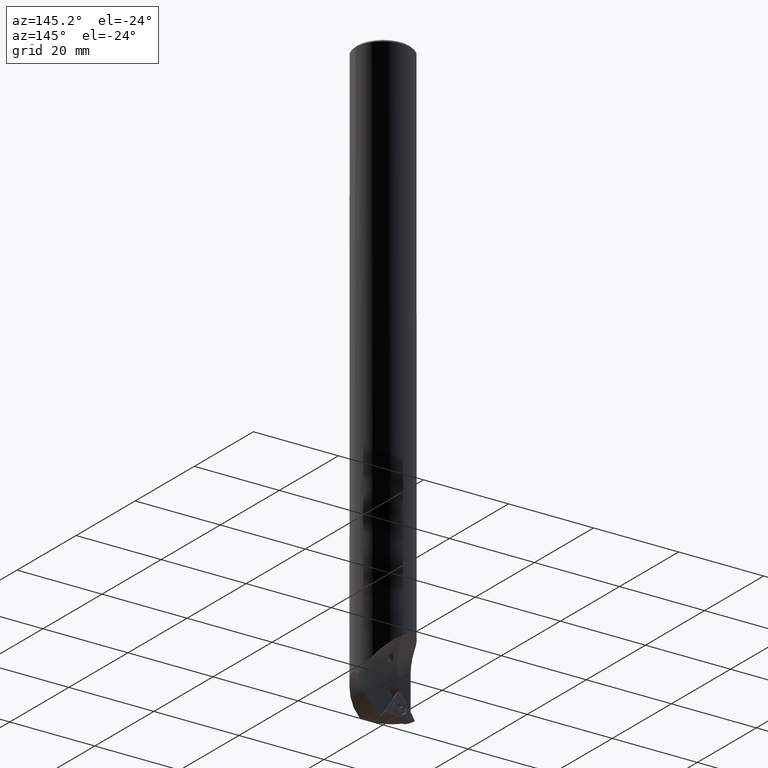
[diagram: clean part render]
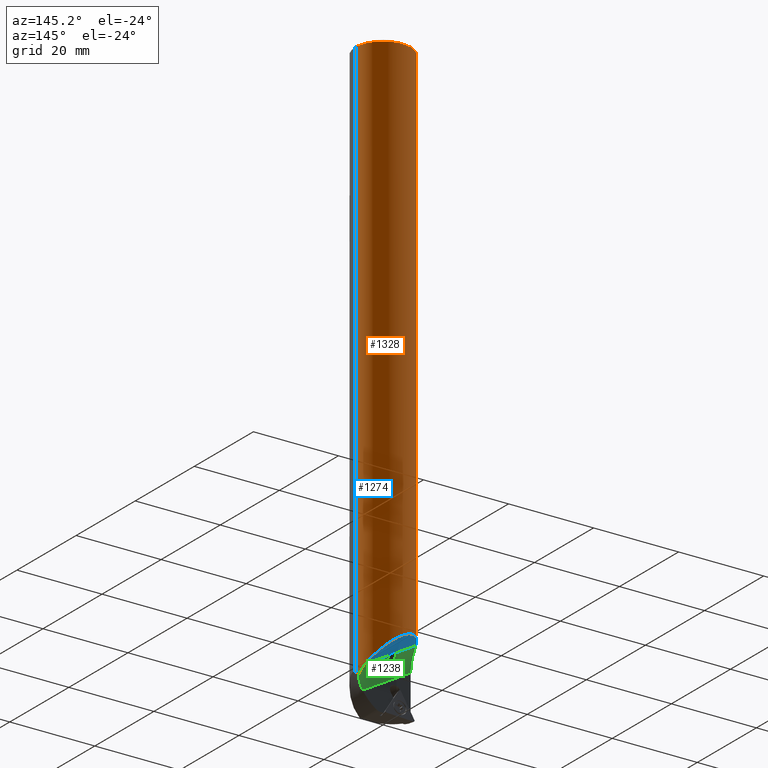
[diagram: same view with three faces highlighted in distinct colors, each labeled with its STEP entity id]
A machine part, auxiliary view with three faces highlighted in distinct colors.
Their STEP definitions:

[orange] entity #1328 — the highlighted cylindrical surface (edge-blend (fillet) strip) has radius 6.5 mm, axis along (-0, -0, 1).
#534=VERTEX_POINT('NONE',#1429);
#572=VERTEX_POINT('NONE',#1470);
#588=EDGE_CURVE('NONE',#1054,#1046,#1489,.F.);
#594=EDGE_CURVE('NONE',#682,#956,#1495,.T.);
#632=EDGE_CURVE('NONE',#876,#534,#1538,.T.);
#682=VERTEX_POINT('NONE',#1592);
#838=EDGE_CURVE('NONE',#572,#682,#1767,.F.);
#876=VERTEX_POINT('NONE',#1810);
#956=VERTEX_POINT('NONE',#1902);
#1022=EDGE_CURVE('NONE',#572,#1054,#1976,.F.);
#1046=VERTEX_POINT('NONE',#2003);
#1054=VERTEX_POINT('NONE',#2012);
#1092=EDGE_CURVE('NONE',#1046,#876,#2055,.F.);
#1328=ADVANCED_FACE('NONE',(#2304),#2305,.T.);
#1334=EDGE_CURVE('NONE',#534,#956,#2312,.F.);
#1429=CARTESIAN_POINT('',(-6.5,7.96020419445779E-016,122.501447599703));
#1470=CARTESIAN_POINT('',(6.4181517159965,1.02826482505779,-10.410927538587));
#1489=ELLIPSE('',#2546,8.66666666666664,6.5);
#1495=LINE('',#2564,#2565);
#1538=LINE('',#2624,#2625);
#1592=CARTESIAN_POINT('',(6.5,3.04439560930842E-015,-9.61536316319582));
#1767=B_SPLINE_CURVE_WITH_KNOTS('',3,(#3133,#3134,#3135,#3136,#3137,#3138,#3139,#3140,#3141,#3142,#3143,#3144,#3145,#3146,#3147,#3148,#3149,#3150,#3151,#3152,#3153,#3154,#3155,#3156,#3157,#3158,#3159,#3160,#3161,#3162),.UNSPECIFIED.,.F.,.F.,(4,2,2,2,2,2,2,2,2,2,2,2,2,2,4),(0.0,1.48157556941845,2.96315113883691,3.70393892354614,4.44472670825536,5.18551449296459,5.5559083853192,5.92630227767382,6.30917237387234,6.69204247007087,7.45778266246793,8.22352285486499,8.98926304726204,10.5207434320562,12.0522238168503),.UNSPECIFIED.);
#1810=CARTESIAN_POINT('',(-6.5,2.66453525910038E-015,-6.45982552211288));
#1902=CARTESIAN_POINT('',(6.5,0.0,122.501447599703));
#1976=B_SPLINE_CURVE_WITH_KNOTS('',3,(#3459,#3460,#3461,#3462,#3463,#3464,#3465,#3466,#3467,#3468,#3469,#3470,#3471,#3472),.UNSPECIFIED.,.F.,.F.,(4,2,2,2,2,2,4),(27.3608249152213,28.3015771847599,29.2423294542986,30.1830817238372,31.1238339933759,32.0645862629145,33.0053385324532),.UNSPECIFIED.);
#2003=CARTESIAN_POINT('',(-5.99999999999999,2.50000000000003,-1.74850065670768));
#2012=CARTESIAN_POINT('',(5.99999999999999,2.50000000000002,-8.6767038869832));
#2055=B_SPLINE_CURVE_WITH_KNOTS('',3,(#3625,#3626,#3627,#3628,#3629,#3630,#3631,#3632,#3633,#3634,#3635,#3636,#3637,#3638,#3639,#3640,#3641,#3642,#3643,#3644,#3645,#3646,#3647,#3648,#3649,#3650,#3651,#3652,#3653,#3654,#3655,#3656),.UNSPECIFIED.,.F.,.F.,(4,2,2,2,2,2,2,2,2,2,2,2,2,2,2,4),(1.53122330375543,2.33034279923355,3.12946229471167,4.16834040833044,5.20721852194922,6.24609663556799,7.28497474918676,8.29764566829968,9.3103165874126,10.3229875065255,11.3356584256384,12.0184372640069,12.7012161023754,13.2460659211265,13.7909157398777,14.3357655586288),.UNSPECIFIED.);
#2304=FACE_OUTER_BOUND('',#4088,.T.);
#2305=CYLINDRICAL_SURFACE('',#4089,6.5);
#2312=CIRCLE('',#4111,6.5);
#2546=AXIS2_PLACEMENT_3D('',#4250,#4251,#4252);
#2564=CARTESIAN_POINT('',(6.5,0.0,4.81724137931033));
#2565=VECTOR('',#4253,1000.0);
#2624=CARTESIAN_POINT('',(-6.5,7.96020419445779E-016,4.81724137931033));
#2625=VECTOR('',#4326,1000.0);
#3133=CARTESIAN_POINT('',(4.0693339651221,-5.06858176221945,-12.674427538587));
#3134=CARTESIAN_POINT('',(4.343295364203,-4.84863060453622,-12.3273499090501));
#3135=CARTESIAN_POINT('',(4.60485841318158,-4.60157300802898,-11.9634820162902));
#3136=CARTESIAN_POINT('',(5.08414678610067,-4.06578981166893,-11.2393529854028));
#3137=CARTESIAN_POINT('',(5.30195662885261,-3.77748526295928,-10.878836339199));
#3138=CARTESIAN_POINT('',(5.59104320701687,-3.32005581346594,-10.3772776808174));
#3139=CARTESIAN_POINT('',(5.68065244667913,-3.16431828419294,-10.2177519144293));
#3140=CARTESIAN_POINT('',(5.84784808096382,-2.84348294288974,-9.91998641096877));
#3141=CARTESIAN_POINT('',(5.92543943068879,-2.67848888240882,-9.78163768536344));
#3142=CARTESIAN_POINT('',(6.06993587583509,-2.33259595585804,-9.53610102999792));
#3143=CARTESIAN_POINT('',(6.13658271981829,-2.15274935726659,-9.42907220602275));
#3144=CARTESIAN_POINT('',(6.22912878879628,-1.85969047364915,-9.30625394393888));
#3145=CARTESIAN_POINT('',(6.25870072262659,-1.75811383778342,-9.27175592875655));
#3146=CARTESIAN_POINT('',(6.31503322047486,-1.54358492620131,-9.22045342008003));
#3147=CARTESIAN_POINT('',(6.3418053057137,-1.43064027145487,-9.20362971194585));
#3148=CARTESIAN_POINT('',(6.39237171438071,-1.18484302924479,-9.19514821064421));
#3149=CARTESIAN_POINT('',(6.41289720997099,-1.06670283075739,-9.20488487220462));
#3150=CARTESIAN_POINT('',(6.44648238313487,-0.840220471426687,-9.24385395964243));
#3151=CARTESIAN_POINT('',(6.45952879235387,-0.731878977946185,-9.27310169671124));
#3152=CARTESIAN_POINT('',(6.49008563372055,-0.416444034996995,-9.38202028457888));
#3153=CARTESIAN_POINT('',(6.49918701917315,-0.219014161932398,-9.48215727137494));
#3154=CARTESIAN_POINT('',(6.50071206195932,0.167790326654282,-9.7171989712599));
#3155=CARTESIAN_POINT('',(6.49294022973169,0.355869084329683,-9.85194240124989));
#3156=CARTESIAN_POINT('',(6.46177385442991,0.728281734341321,-10.1455360919779));
#3157=CARTESIAN_POINT('',(6.4383307141236,0.912512822829217,-10.3045115723736));
#3158=CARTESIAN_POINT('',(6.34396140406247,1.463995171864,-10.8093364372275));
#3159=CARTESIAN_POINT('',(6.24948164580279,1.82482863268737,-11.1777840789705));
#3160=CARTESIAN_POINT('',(6.00295479314521,2.52003054909741,-11.9268213639317));
#3161=CARTESIAN_POINT('',(5.85070174257419,2.85401525758759,-12.3076992969271));
#3162=CARTESIAN_POINT('',(5.67782558652354,3.1642213274388,-12.674427538587));
#3459=CARTESIAN_POINT('',(5.22124950850701,3.87150533641829,-7.60256249551185));
#3460=CARTESIAN_POINT('',(5.38683308613941,3.64819344613696,-7.7579020358014));
#3461=CARTESIAN_POINT('',(5.53540350607641,3.41758095922594,-7.92422801024812));
#3462=CARTESIAN_POINT('',(5.79579278657935,2.9545451049152,-8.28271548916474));
#3463=CARTESIAN_POINT('',(5.90769439841691,2.72203984743513,-8.47500054641556));
#3464=CARTESIAN_POINT('',(6.0963082809192,2.26834287080316,-8.8871379235163));
#3465=CARTESIAN_POINT('',(6.17305973081545,2.04718621630075,-9.10701091167012));
#3466=CARTESIAN_POINT('',(6.29648336176224,1.62847631749477,-9.57301039424305));
#3467=CARTESIAN_POINT('',(6.34342411127245,1.43018485727317,-9.81996133582342));
#3468=CARTESIAN_POINT('',(6.4147062427065,1.06583394691897,-10.3387428171661));
#3469=CARTESIAN_POINT('',(6.43910619447304,0.899784448247355,-10.6105722966708));
#3470=CARTESIAN_POINT('',(6.47325827335607,0.60714748450355,-11.1739302585101));
#3471=CARTESIAN_POINT('',(6.4830677512974,0.480500097963002,-11.4655493340295));
#3472=CARTESIAN_POINT('',(6.48914087804283,0.375567124378032,-11.7637748819999));
#3625=CARTESIAN_POINT('',(-6.00392903362583,2.49054936895151,-11.7399159092085));
#3626=CARTESIAN_POINT('',(-6.08207542829125,2.30216305802188,-11.5685729724642));
#3627=CARTESIAN_POINT('',(-6.15492390456402,2.09949884697526,-11.3704313982927));
#3628=CARTESIAN_POINT('',(-6.27364678219302,1.71240759000395,-10.9497830062149));
#3629=CARTESIAN_POINT('',(-6.31984719229765,1.52826033568156,-10.7271108549506));
#3630=CARTESIAN_POINT('',(-6.39811546935011,1.16539341325459,-10.2397084120868));
#3631=CARTESIAN_POINT('',(-6.42955901516006,0.970075888395624,-9.93780127899309));
#3632=CARTESIAN_POINT('',(-6.47225025989958,0.62470228739717,-9.29444366780024));
#3633=CARTESIAN_POINT('',(-6.48375455307809,0.474712358990466,-8.95297473384794));
#3634=CARTESIAN_POINT('',(-6.49686614951863,0.234855238476395,-8.24992390626514));
#3635=CARTESIAN_POINT('',(-6.49865231866446,0.144789639739233,-7.88788573340246));
#3636=CARTESIAN_POINT('',(-6.50020734507825,0.0273946868490077,-7.16597755498649));
#3637=CARTESIAN_POINT('',(-6.5,2.54150737627171E-015,-6.80611822665247));
#3638=CARTESIAN_POINT('',(-6.5,2.78445958664891E-015,-6.12226854907524));
#3639=CARTESIAN_POINT('',(-6.50018741713691,0.0260197070952788,-5.77130962414029));
#3640=CARTESIAN_POINT('',(-6.49878277081063,0.13760808043243,-5.06862135944662));
#3641=CARTESIAN_POINT('',(-6.49719614467401,0.223079299257464,-4.71687653743852));
#3642=CARTESIAN_POINT('',(-6.48517985891418,0.45361361593843,-4.03747450301072));
#3643=CARTESIAN_POINT('',(-6.47471448821716,0.59865774799578,-3.70961192482361));
#3644=CARTESIAN_POINT('',(-6.43337771517075,0.944441623022279,-3.1007614565634));
#3645=CARTESIAN_POINT('',(-6.40248437658318,1.14513831142105,-2.81975060504396));
#3646=CARTESIAN_POINT('',(-6.32110326360661,1.52243694531965,-2.40693431849989));
#3647=CARTESIAN_POINT('',(-6.27634470728804,1.70243339795507,-2.23973447083548));
#3648=CARTESIAN_POINT('',(-6.15855688140791,2.08876990435507,-1.95441082520184));
#3649=CARTESIAN_POINT('',(-6.08496139050576,2.29520591332695,-1.83665110702008));
#3650=CARTESIAN_POINT('',(-5.9392661259931,2.6464312452053,-1.68543565179472));
#3651=CARTESIAN_POINT('',(-5.86395203194637,2.81050314989287,-1.63230050558585));
#3652=CARTESIAN_POINT('',(-5.69295316292745,3.14247445099718,-1.56137972111784));
#3653=CARTESIAN_POINT('',(-5.59723585468348,3.31035020923315,-1.54356188663421));
#3654=CARTESIAN_POINT('',(-5.390331763225,3.63755291630688,-1.54192553999278));
#3655=CARTESIAN_POINT('',(-5.27895228726255,3.79719228988576,-1.55801259017689));
#3656=CARTESIAN_POINT('',(-5.16370057419434,3.94793571123759,-1.58708927833161));
#4088=EDGE_LOOP('',(#5236,#5237,#5238,#5239,#5240,#5241,#5242));
#4089=AXIS2_PLACEMENT_3D('',#5243,#5244,#5245);
#4111=AXIS2_PLACEMENT_3D('',#5254,#5255,#5256);
#4250=CARTESIAN_POINT('',(0.0,0.0,-6.8792689385121));
#4251=DIRECTION('',(-0.433012701892222,0.499999999999995,-0.750000000000002));
#4252=DIRECTION('',(0.490990253030988,-0.566946709513839,-0.661437827766145));
#4253=DIRECTION('',(-0.0,0.0,1.0));
#4326=DIRECTION('',(-0.0,0.0,1.0));
#5236=ORIENTED_EDGE('',*,*,#1092,.T.);
#5237=ORIENTED_EDGE('',*,*,#632,.T.);
#5238=ORIENTED_EDGE('',*,*,#1334,.T.);
#5239=ORIENTED_EDGE('',*,*,#594,.F.);
#5240=ORIENTED_EDGE('',*,*,#838,.F.);
#5241=ORIENTED_EDGE('',*,*,#1022,.T.);
#5242=ORIENTED_EDGE('',*,*,#588,.T.);
#5243=CARTESIAN_POINT('',(0.0,0.0,4.81724137931033));
#5244=DIRECTION('',(-0.0,-0.0,1.0));
#5245=DIRECTION('',(1.0,0.0,0.0));
#5254=CARTESIAN_POINT('',(0.0,0.0,122.501447599703));
#5255=DIRECTION('',(0.0,-0.0,1.0));
#5256=DIRECTION('',(1.0,0.0,0.0));

[blue] entity #1274 — the highlighted planar face has unit normal (0.433, -0.5, 0.75).
#524=EDGE_CURVE('NONE',#566,#1148,#1416,.F.);
#566=VERTEX_POINT('NONE',#1464);
#588=EDGE_CURVE('NONE',#1054,#1046,#1489,.F.);
#938=EDGE_CURVE('NONE',#1148,#1054,#1882,.F.);
#1014=EDGE_CURVE('NONE',#1046,#1288,#1967,.F.);
#1046=VERTEX_POINT('NONE',#2003);
#1054=VERTEX_POINT('NONE',#2012);
#1148=VERTEX_POINT('NONE',#2116);
#1274=ADVANCED_FACE('NONE',(#2248),#2249,.F.);
#1288=VERTEX_POINT('NONE',#2264);
#1310=EDGE_CURVE('NONE',#1288,#566,#2286,.T.);
#1416=ELLIPSE('',#2426,1.08043849152186,0.999999999999998);
#1464=CARTESIAN_POINT('',(-0.699275785881519,2.76737876691187,-4.6306226973544));
#1489=ELLIPSE('',#2546,8.66666666666664,6.5);
#1882=LINE('',#3307,#3308);
#1967=LINE('',#3446,#3447);
#2003=CARTESIAN_POINT('',(-5.99999999999999,2.50000000000003,-1.74850065670768));
#2012=CARTESIAN_POINT('',(5.99999999999999,2.50000000000002,-8.6767038869832));
#2116=CARTESIAN_POINT('',(0.0895053325429499,2.50000000000003,-5.26427819968302));
#2248=FACE_OUTER_BOUND('',#3969,.T.);
#2249=PLANE('',#3970);
#2264=CARTESIAN_POINT('',(-1.27144617120936,2.50000000000002,-4.4785324826376));
#2286=ELLIPSE('',#4067,1.08043849152186,0.999999999999998);
#2426=AXIS2_PLACEMENT_3D('',#4161,#4162,#4163);
#2546=AXIS2_PLACEMENT_3D('',#4250,#4251,#4252);
#3307=CARTESIAN_POINT('',(-7.47712299501965,2.50000000000003,-0.895683297906896));
#3308=VECTOR('',#4797,0.999999999999999);
#3446=CARTESIAN_POINT('',(-7.47712299501965,2.50000000000003,-0.895683297906896));
#3447=VECTOR('',#4902,0.999999999999999);
#3969=EDGE_LOOP('',(#5188,#5189,#5190,#5191,#5192));
#3970=AXIS2_PLACEMENT_3D('',#5193,#5194,#5195);
#4067=AXIS2_PLACEMENT_3D('',#5223,#5224,#5225);
#4161=CARTESIAN_POINT('',(-0.729028857996757,1.90658110224935,-5.18730986293445));
#4162=DIRECTION('',(0.433012701892221,-0.499999999999995,0.750000000000002));
#4163=DIRECTION('',(0.713093408512597,-0.318930102404416,-0.624324739631704));
#4250=CARTESIAN_POINT('',(0.0,0.0,-6.8792689385121));
#4251=DIRECTION('',(-0.433012701892222,0.499999999999995,-0.750000000000002));
#4252=DIRECTION('',(0.490990253030988,-0.566946709513839,-0.661437827766145));
#4797=DIRECTION('',(-0.866025403784438,0.0,0.500000000000001));
#4902=DIRECTION('',(-0.866025403784438,0.0,0.500000000000001));
#5188=ORIENTED_EDGE('',*,*,#1310,.F.);
#5189=ORIENTED_EDGE('',*,*,#1014,.F.);
#5190=ORIENTED_EDGE('',*,*,#588,.F.);
#5191=ORIENTED_EDGE('',*,*,#938,.F.);
#5192=ORIENTED_EDGE('',*,*,#524,.F.);
#5193=CARTESIAN_POINT('',(-5.31205948555858,10.0,2.85431670209304));
#5194=DIRECTION('',(0.433012701892222,-0.499999999999995,0.750000000000002));
#5195=DIRECTION('',(0.0,0.832050294337847,0.554700196225224));
#5223=CARTESIAN_POINT('',(-0.729028857996757,1.90658110224935,-5.18730986293445));
#5224=DIRECTION('',(-0.433012701892221,0.499999999999995,-0.750000000000002));
#5225=DIRECTION('',(0.713093408512597,-0.318930102404416,-0.624324739631704));

[green] entity #1238 — the highlighted cylindrical surface (edge-blend (fillet) strip) has radius 5 mm, axis along (0.866, -0, -0.5).
#500=EDGE_CURVE('NONE',#1148,#746,#1392,.F.);
#572=VERTEX_POINT('NONE',#1470);
#746=VERTEX_POINT('NONE',#1667);
#780=EDGE_CURVE('NONE',#746,#1288,#1704,.T.);
#820=EDGE_CURVE('NONE',#572,#906,#1747,.F.);
#860=EDGE_CURVE('NONE',#876,#906,#1791,.F.);
#876=VERTEX_POINT('NONE',#1810);
#906=VERTEX_POINT('NONE',#1843);
#938=EDGE_CURVE('NONE',#1148,#1054,#1882,.F.);
#1014=EDGE_CURVE('NONE',#1046,#1288,#1967,.F.);
#1022=EDGE_CURVE('NONE',#572,#1054,#1976,.F.);
#1046=VERTEX_POINT('NONE',#2003);
#1054=VERTEX_POINT('NONE',#2012);
#1092=EDGE_CURVE('NONE',#1046,#876,#2055,.F.);
#1148=VERTEX_POINT('NONE',#2116);
#1238=ADVANCED_FACE('NONE',(#2211),#2212,.F.);
#1288=VERTEX_POINT('NONE',#2264);
#1392=B_SPLINE_CURVE_WITH_KNOTS('',3,(#2378,#2379,#2380,#2381,#2382,#2383,#2384,#2385,#2386,#2387,#2388,#2389,#2390,#2391),.UNSPECIFIED.,.F.,.F.,(4,2,2,2,2,2,4),(0.18993091117232,0.385841232353532,0.771682464707065,1.15909220396021,1.54650194321336,1.94484801144769,2.29980904838715),.UNSPECIFIED.);
#1470=CARTESIAN_POINT('',(6.4181517159965,1.02826482505779,-10.410927538587));
#1667=CARTESIAN_POINT('',(-0.802182829715321,1.15928694858893,-6.05281047547703));
#1704=B_SPLINE_CURVE_WITH_KNOTS('',3,(#2962,#2963,#2964,#2965,#2966,#2967,#2968,#2969,#2970,#2971,#2972,#2973,#2974,#2975,#2976,#2977,#2978),.UNSPECIFIED.,.F.,.F.,(4,3,2,2,2,2,2,4),(6.21474881587073,6.40454672665025,6.83556166082123,7.2665765949922,7.68678608475552,8.10699557451885,8.48246906732796,8.83300492565531),.UNSPECIFIED.);
#1747=B_SPLINE_CURVE_WITH_KNOTS('',3,(#3092,#3093,#3094,#3095,#3096,#3097,#3098,#3099,#3100,#3101,#3102,#3103,#3104,#3105,#3106,#3107,#3108,#3109),.UNSPECIFIED.,.F.,.F.,(4,2,2,2,2,2,2,2,4),(5.38750094505331,6.30192682538421,7.2163527057151,8.11157982604269,9.00680694637028,9.90203406669787,10.7972611870255,11.6925772605418,12.5878933340582),.UNSPECIFIED.);
#1791=LINE('',#3194,#3195);
#1810=CARTESIAN_POINT('',(-6.5,2.66453525910038E-015,-6.45982552211288));
#1843=CARTESIAN_POINT('',(4.83844413966248,2.66453525910007E-015,-13.0060792983386));
#1882=LINE('',#3307,#3308);
#1967=LINE('',#3446,#3447);
#1976=B_SPLINE_CURVE_WITH_KNOTS('',3,(#3459,#3460,#3461,#3462,#3463,#3464,#3465,#3466,#3467,#3468,#3469,#3470,#3471,#3472),.UNSPECIFIED.,.F.,.F.,(4,2,2,2,2,2,4),(27.3608249152213,28.3015771847599,29.2423294542986,30.1830817238372,31.1238339933759,32.0645862629145,33.0053385324532),.UNSPECIFIED.);
#2003=CARTESIAN_POINT('',(-5.99999999999999,2.50000000000003,-1.74850065670768));
#2012=CARTESIAN_POINT('',(5.99999999999999,2.50000000000002,-8.6767038869832));
#2055=B_SPLINE_CURVE_WITH_KNOTS('',3,(#3625,#3626,#3627,#3628,#3629,#3630,#3631,#3632,#3633,#3634,#3635,#3636,#3637,#3638,#3639,#3640,#3641,#3642,#3643,#3644,#3645,#3646,#3647,#3648,#3649,#3650,#3651,#3652,#3653,#3654,#3655,#3656),.UNSPECIFIED.,.F.,.F.,(4,2,2,2,2,2,2,2,2,2,2,2,2,2,2,4),(1.53122330375543,2.33034279923355,3.12946229471167,4.16834040833044,5.20721852194922,6.24609663556799,7.28497474918676,8.29764566829968,9.3103165874126,10.3229875065255,11.3356584256384,12.0184372640069,12.7012161023754,13.2460659211265,13.7909157398777,14.3357655586288),.UNSPECIFIED.);
#2116=CARTESIAN_POINT('',(0.0895053325429499,2.50000000000003,-5.26427819968302));
#2211=FACE_OUTER_BOUND('',#3915,.T.);
#2212=CYLINDRICAL_SURFACE('',#3916,5.0);
#2264=CARTESIAN_POINT('',(-1.27144617120936,2.50000000000002,-4.4785324826376));
#2378=CARTESIAN_POINT('',(-0.802182829715321,1.15928694858893,-6.05281047547703));
#2379=CARTESIAN_POINT('',(-0.739137653008416,1.16815174435111,-6.07692927243549));
#2380=CARTESIAN_POINT('',(-0.673843064105195,1.18202430388808,-6.09548393244842));
#2381=CARTESIAN_POINT('',(-0.481181509250763,1.2381429646395,-6.1309853132469));
#2382=CARTESIAN_POINT('',(-0.354761363558445,1.29594513211234,-6.12791809410111));
#2383=CARTESIAN_POINT('',(-0.141697316282536,1.4336953939111,-6.0824889560144));
#2384=CARTESIAN_POINT('',(-0.0428155201089147,1.52144117620106,-6.03784884725394));
#2385=CARTESIAN_POINT('',(0.108945239086432,1.71610988304767,-5.91912366921118));
#2386=CARTESIAN_POINT('',(0.161814528395784,1.82314946385921,-5.84521760718892));
#2387=CARTESIAN_POINT('',(0.217782482352725,2.02848244005977,-5.69255028472645));
#2388=CARTESIAN_POINT('',(0.223502844626001,2.14116519262907,-5.60273579131864));
#2389=CARTESIAN_POINT('',(0.183303187170114,2.33993823559454,-5.42807952694668));
#2390=CARTESIAN_POINT('',(0.143162839652924,2.42755554291781,-5.34355368057848));
#2391=CARTESIAN_POINT('',(0.0895053325429499,2.50000000000003,-5.26427819968302));
#2962=CARTESIAN_POINT('',(-0.802182829715321,1.15928694858893,-6.05281047547703));
#2963=CARTESIAN_POINT('',(-0.863331576862051,1.15068881019227,-6.02941718365469));
#2964=CARTESIAN_POINT('',(-0.922352240106989,1.14679400640854,-6.00080601973357));
#2965=CARTESIAN_POINT('',(-0.97714217754708,1.14679400640854,-5.96917303460365));
#2966=CARTESIAN_POINT('',(-1.10156547168126,1.14679400640854,-5.89733721224182));
#2967=CARTESIAN_POINT('',(-1.22038263100322,1.16724122691769,-5.79973918243788));
#2968=CARTESIAN_POINT('',(-1.42010332898099,1.24448527420641,-5.5805097676029));
#2969=CARTESIAN_POINT('',(-1.50127637978087,1.30141515306768,-5.45917099214194));
#2970=CARTESIAN_POINT('',(-1.6156831860416,1.43140769964867,-5.23439945268867));
#2971=CARTESIAN_POINT('',(-1.65879384206091,1.51404021042034,-5.1132316293671));
#2972=CARTESIAN_POINT('',(-1.6965043965214,1.70548941999715,-4.88752783669034));
#2973=CARTESIAN_POINT('',(-1.69101456108554,1.81457826358717,-4.78320785919321));
#2974=CARTESIAN_POINT('',(-1.63433951254173,2.02250539994034,-4.62861175017213));
#2975=CARTESIAN_POINT('',(-1.58450921826423,2.13215149713229,-4.5661926325972));
#2976=CARTESIAN_POINT('',(-1.44700450923911,2.33296789470611,-4.49175635551148));
#2977=CARTESIAN_POINT('',(-1.36206494281465,2.42485815039249,-4.47630827686267));
#2978=CARTESIAN_POINT('',(-1.27144617120936,2.50000000000002,-4.4785324826376));
#3092=CARTESIAN_POINT('',(3.54252459515468,0.464361271682998,-14.6876894847009));
#3093=CARTESIAN_POINT('',(3.73436890578534,0.32966060698627,-14.4631963437897));
#3094=CARTESIAN_POINT('',(3.9299541218787,0.222891852852881,-14.2249935891319));
#3095=CARTESIAN_POINT('',(4.31281815187718,0.0704936666197373,-13.7356588102458));
#3096=CARTESIAN_POINT('',(4.50009063579974,0.0249031878377161,-13.4845097026717));
#3097=CARTESIAN_POINT('',(4.84943500250918,-0.00879116247545239,-12.993903182282));
#3098=CARTESIAN_POINT('',(5.02380861323624,0.000786553971523878,-12.7376508007631));
#3099=CARTESIAN_POINT('',(5.3625252826387,0.0802968714710792,-12.216639668055));
#3100=CARTESIAN_POINT('',(5.52689132284834,0.150215780986123,-11.9518937684729));
#3101=CARTESIAN_POINT('',(5.83722834937206,0.348294643494199,-11.4340742951648));
#3102=CARTESIAN_POINT('',(5.98350658319581,0.476606676644204,-11.1806371557594));
#3103=CARTESIAN_POINT('',(6.25413859684809,0.780981676716714,-10.703997531404));
#3104=CARTESIAN_POINT('',(6.37858540394625,0.957062877090919,-10.4808595170696));
#3105=CARTESIAN_POINT('',(6.60444495793956,1.33747059962742,-10.0802292126239));
#3106=CARTESIAN_POINT('',(6.71386656646022,1.55544450763507,-9.88833828751756));
#3107=CARTESIAN_POINT('',(6.92085261520799,2.03664375668892,-9.54406317077653));
#3108=CARTESIAN_POINT('',(7.01852701339834,2.29985541264649,-9.39172597101193));
#3109=CARTESIAN_POINT('',(7.10929055985115,2.57725208495688,-9.26670195005764));
#3194=CARTESIAN_POINT('',(-9.64218650448075,0.0,-4.6456832979069));
#3195=VECTOR('',#4636,0.999999999999999);
#3307=CARTESIAN_POINT('',(-7.47712299501965,2.50000000000003,-0.895683297906896));
#3308=VECTOR('',#4797,0.999999999999999);
#3446=CARTESIAN_POINT('',(-7.47712299501965,2.50000000000003,-0.895683297906896));
#3447=VECTOR('',#4902,0.999999999999999);
#3459=CARTESIAN_POINT('',(5.22124950850701,3.87150533641829,-7.60256249551185));
#3460=CARTESIAN_POINT('',(5.38683308613941,3.64819344613696,-7.7579020358014));
#3461=CARTESIAN_POINT('',(5.53540350607641,3.41758095922594,-7.92422801024812));
#3462=CARTESIAN_POINT('',(5.79579278657935,2.9545451049152,-8.28271548916474));
#3463=CARTESIAN_POINT('',(5.90769439841691,2.72203984743513,-8.47500054641556));
#3464=CARTESIAN_POINT('',(6.0963082809192,2.26834287080316,-8.8871379235163));
#3465=CARTESIAN_POINT('',(6.17305973081545,2.04718621630075,-9.10701091167012));
#3466=CARTESIAN_POINT('',(6.29648336176224,1.62847631749477,-9.57301039424305));
#3467=CARTESIAN_POINT('',(6.34342411127245,1.43018485727317,-9.81996133582342));
#3468=CARTESIAN_POINT('',(6.4147062427065,1.06583394691897,-10.3387428171661));
#3469=CARTESIAN_POINT('',(6.43910619447304,0.899784448247355,-10.6105722966708));
#3470=CARTESIAN_POINT('',(6.47325827335607,0.60714748450355,-11.1739302585101));
#3471=CARTESIAN_POINT('',(6.4830677512974,0.480500097963002,-11.4655493340295));
#3472=CARTESIAN_POINT('',(6.48914087804283,0.375567124378032,-11.7637748819999));
#3625=CARTESIAN_POINT('',(-6.00392903362583,2.49054936895151,-11.7399159092085));
#3626=CARTESIAN_POINT('',(-6.08207542829125,2.30216305802188,-11.5685729724642));
#3627=CARTESIAN_POINT('',(-6.15492390456402,2.09949884697526,-11.3704313982927));
#3628=CARTESIAN_POINT('',(-6.27364678219302,1.71240759000395,-10.9497830062149));
#3629=CARTESIAN_POINT('',(-6.31984719229765,1.52826033568156,-10.7271108549506));
#3630=CARTESIAN_POINT('',(-6.39811546935011,1.16539341325459,-10.2397084120868));
#3631=CARTESIAN_POINT('',(-6.42955901516006,0.970075888395624,-9.93780127899309));
#3632=CARTESIAN_POINT('',(-6.47225025989958,0.62470228739717,-9.29444366780024));
#3633=CARTESIAN_POINT('',(-6.48375455307809,0.474712358990466,-8.95297473384794));
#3634=CARTESIAN_POINT('',(-6.49686614951863,0.234855238476395,-8.24992390626514));
#3635=CARTESIAN_POINT('',(-6.49865231866446,0.144789639739233,-7.88788573340246));
#3636=CARTESIAN_POINT('',(-6.50020734507825,0.0273946868490077,-7.16597755498649));
#3637=CARTESIAN_POINT('',(-6.5,2.54150737627171E-015,-6.80611822665247));
#3638=CARTESIAN_POINT('',(-6.5,2.78445958664891E-015,-6.12226854907524));
#3639=CARTESIAN_POINT('',(-6.50018741713691,0.0260197070952788,-5.77130962414029));
#3640=CARTESIAN_POINT('',(-6.49878277081063,0.13760808043243,-5.06862135944662));
#3641=CARTESIAN_POINT('',(-6.49719614467401,0.223079299257464,-4.71687653743852));
#3642=CARTESIAN_POINT('',(-6.48517985891418,0.45361361593843,-4.03747450301072));
#3643=CARTESIAN_POINT('',(-6.47471448821716,0.59865774799578,-3.70961192482361));
#3644=CARTESIAN_POINT('',(-6.43337771517075,0.944441623022279,-3.1007614565634));
#3645=CARTESIAN_POINT('',(-6.40248437658318,1.14513831142105,-2.81975060504396));
#3646=CARTESIAN_POINT('',(-6.32110326360661,1.52243694531965,-2.40693431849989));
#3647=CARTESIAN_POINT('',(-6.27634470728804,1.70243339795507,-2.23973447083548));
#3648=CARTESIAN_POINT('',(-6.15855688140791,2.08876990435507,-1.95441082520184));
#3649=CARTESIAN_POINT('',(-6.08496139050576,2.29520591332695,-1.83665110702008));
#3650=CARTESIAN_POINT('',(-5.9392661259931,2.6464312452053,-1.68543565179472));
#3651=CARTESIAN_POINT('',(-5.86395203194637,2.81050314989287,-1.63230050558585));
#3652=CARTESIAN_POINT('',(-5.69295316292745,3.14247445099718,-1.56137972111784));
#3653=CARTESIAN_POINT('',(-5.59723585468348,3.31035020923315,-1.54356188663421));
#3654=CARTESIAN_POINT('',(-5.390331763225,3.63755291630688,-1.54192553999278));
#3655=CARTESIAN_POINT('',(-5.27895228726255,3.79719228988576,-1.55801259017689));
#3656=CARTESIAN_POINT('',(-5.16370057419434,3.94793571123759,-1.58708927833161));
#3915=EDGE_LOOP('',(#5158,#5159,#5160,#5161,#5162,#5163,#5164,#5165));
#3916=AXIS2_PLACEMENT_3D('',#5166,#5167,#5168);
#4636=DIRECTION('',(-0.866025403784438,0.0,0.500000000000001));
#4797=DIRECTION('',(-0.866025403784438,0.0,0.500000000000001));
#4902=DIRECTION('',(-0.866025403784438,0.0,0.500000000000001));
#5158=ORIENTED_EDGE('',*,*,#500,.F.);
#5159=ORIENTED_EDGE('',*,*,#938,.T.);
#5160=ORIENTED_EDGE('',*,*,#1022,.F.);
#5161=ORIENTED_EDGE('',*,*,#820,.T.);
#5162=ORIENTED_EDGE('',*,*,#860,.F.);
#5163=ORIENTED_EDGE('',*,*,#1092,.F.);
#5164=ORIENTED_EDGE('',*,*,#1014,.T.);
#5165=ORIENTED_EDGE('',*,*,#780,.F.);
#5166=CARTESIAN_POINT('',(-9.64218650448075,5.0,-4.6456832979069));
#5167=DIRECTION('',(0.866025403784438,-0.0,-0.500000000000001));
#5168=DIRECTION('',(-0.500000000000001,0.0,-0.866025403784438));